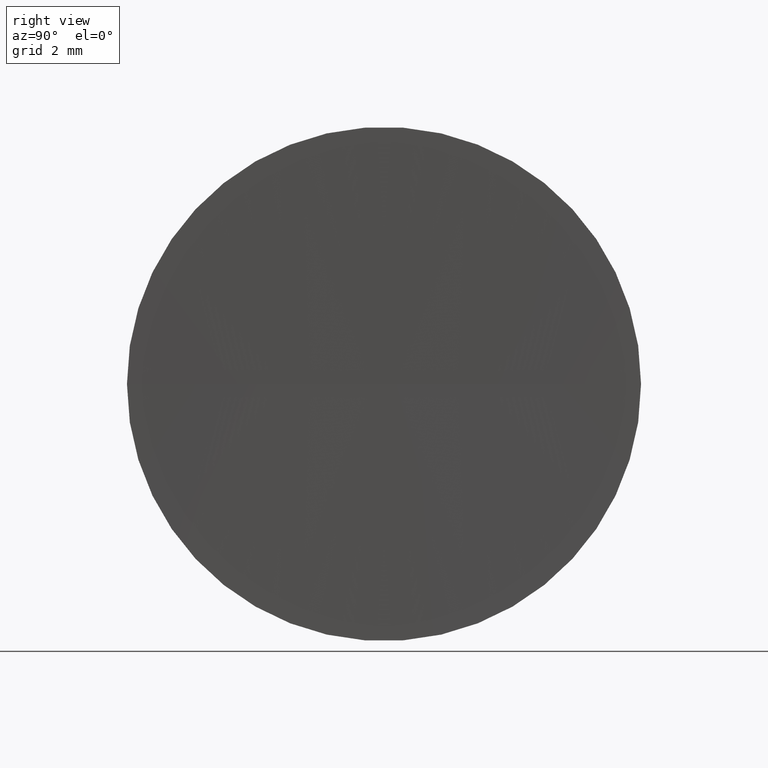
[diagram: clean part render]
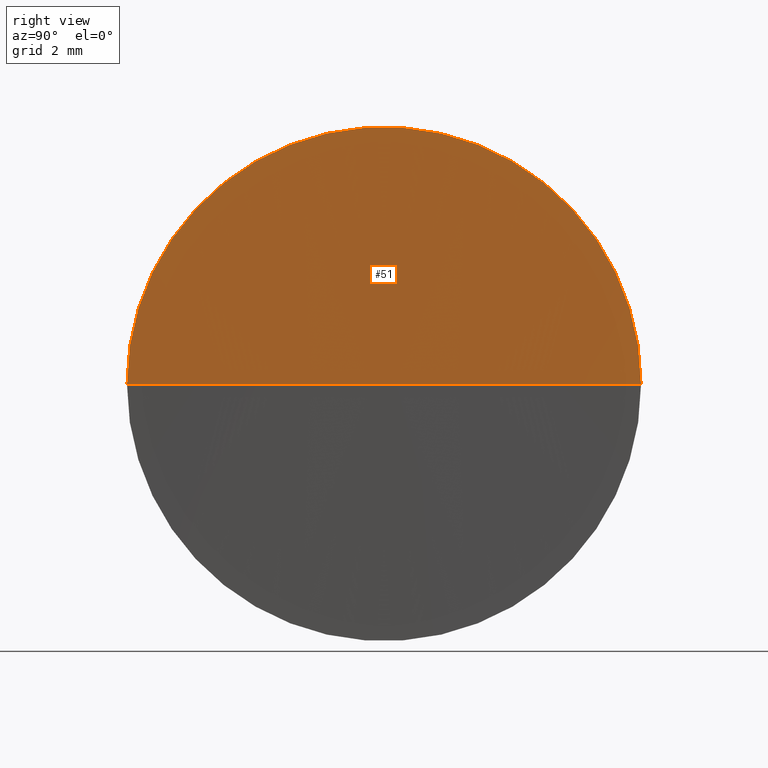
[diagram: same view with one face highlighted and labeled with its STEP entity id]
A machine part, right view. The second image highlights one B-rep face of the part: STEP entity #51.
In plain terms, the highlighted spherical surface has radius 363 mm.
Its self-contained STEP definition (entity closure, byte-faithful):
#3 = DIRECTION ( 'NONE',  ( -1.000000000000000000, -6.937607244762875000E-016, -0.0000000000000000000 ) ) ;
#7 = DIRECTION ( 'NONE',  ( -8.496118506040342700E-032, 1.224646799147353200E-016, -1.000000000000000000 ) ) ;
#16 = CIRCLE ( 'NONE', #152, 363.0000000000000600 ) ;
#25 = ORIENTED_EDGE ( 'NONE', *, *, #50, .T. ) ;
#32 = DIRECTION ( 'NONE',  ( 0.0000000000000000000, -0.0000000000000000000, 1.000000000000000000 ) ) ;
#33 = CARTESIAN_POINT ( 'NONE',  ( 426.3936778931471300, 32.60842023547012800, 0.0000000000000000000 ) ) ;
#35 = EDGE_LOOP ( 'NONE', ( #115, #25, #191 ) ) ;
#44 = SPHERICAL_SURFACE ( 'NONE', #159, 363.0000000000000600 ) ;
#46 = EDGE_CURVE ( 'NONE', #88, #128, #48, .T. ) ;
#47 = CARTESIAN_POINT ( 'NONE',  ( 63.39367789314709300, 32.60842023546990000, 0.0000000000000000000 ) ) ;
#48 = CIRCLE ( 'NONE', #114, 363.0000000000000600 ) ;
#50 = EDGE_CURVE ( 'NONE', #161, #128, #16, .T. ) ;
#51 = ADVANCED_FACE ( 'NONE', ( #122 ), #44, .F. ) ;
#63 = CARTESIAN_POINT ( 'NONE',  ( 63.44748697774435400, 32.60842023547017000, 0.0000000000000000000 ) ) ;
#64 = DIRECTION ( 'NONE',  ( -7.646164081440470900E-016, 1.000000000000000000, 0.0000000000000000000 ) ) ;
#88 = VERTEX_POINT ( 'NONE', #90 ) ;
#90 = CARTESIAN_POINT ( 'NONE',  ( 63.44748697774434000, 38.85842023547196800, 0.0000000000000000000 ) ) ;
#109 = DIRECTION ( 'NONE',  ( 0.0000000000000000000, -1.000000000000000000, 0.0000000000000000000 ) ) ;
#114 = AXIS2_PLACEMENT_3D ( 'NONE', #182, #32, #125 ) ;
#115 = ORIENTED_EDGE ( 'NONE', *, *, #145, .F. ) ;
#121 = DIRECTION ( 'NONE',  ( 0.0000000000000000000, 1.000000000000000000, 1.224646799147353200E-016 ) ) ;
#122 = FACE_OUTER_BOUND ( 'NONE', #35, .T. ) ;
#125 = DIRECTION ( 'NONE',  ( 1.000000000000000000, 0.0000000000000000000, 0.0000000000000000000 ) ) ;
#128 = VERTEX_POINT ( 'NONE', #47 ) ;
#138 = CARTESIAN_POINT ( 'NONE',  ( 63.44748697774434000, 26.35842023546807800, -7.654042494673167400E-016 ) ) ;
#145 = EDGE_CURVE ( 'NONE', #161, #88, #151, .T. ) ;
#149 = CARTESIAN_POINT ( 'NONE',  ( 426.3936778931471300, 32.60842023547012800, 0.0000000000000000000 ) ) ;
#151 = CIRCLE ( 'NONE', #178, 6.250000000000078200 ) ;
#152 = AXIS2_PLACEMENT_3D ( 'NONE', #149, #7, #121 ) ;
#159 = AXIS2_PLACEMENT_3D ( 'NONE', #33, #183, #64 ) ;
#161 = VERTEX_POINT ( 'NONE', #138 ) ;
#178 = AXIS2_PLACEMENT_3D ( 'NONE', #63, #3, #109 ) ;
#182 = CARTESIAN_POINT ( 'NONE',  ( 426.3936778931471300, 32.60842023547012800, 0.0000000000000000000 ) ) ;
#183 = DIRECTION ( 'NONE',  ( 0.0000000000000000000, 0.0000000000000000000, -1.000000000000000000 ) ) ;
#191 = ORIENTED_EDGE ( 'NONE', *, *, #46, .F. ) ;